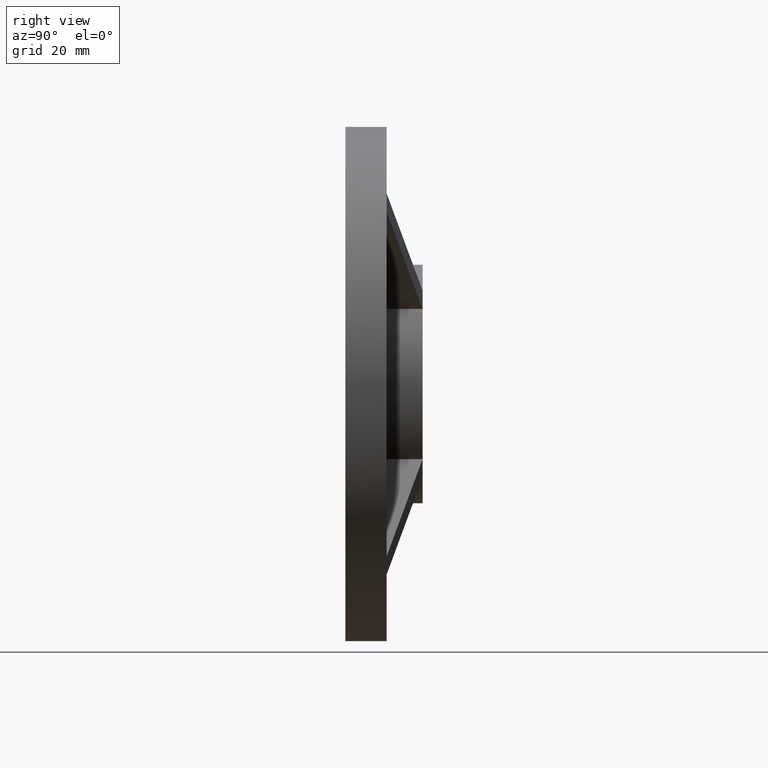
[diagram: clean part render]
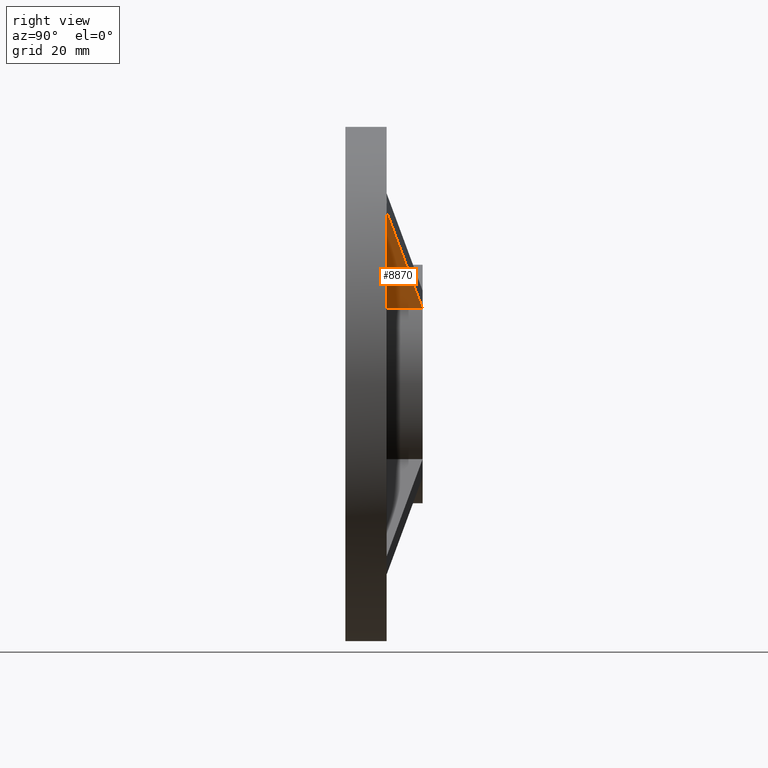
[diagram: same view with one face highlighted and labeled with its STEP entity id]
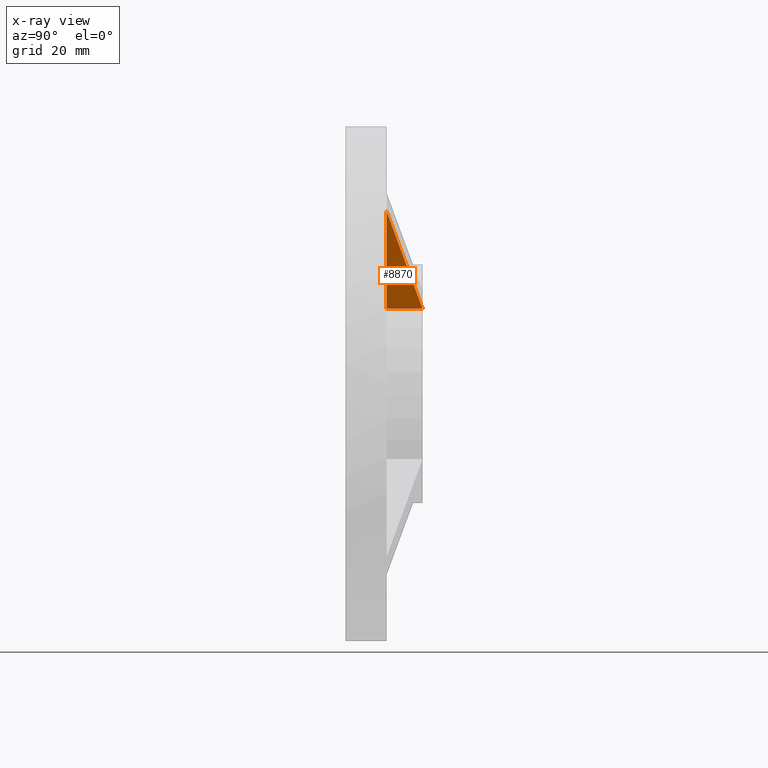
[diagram: x-ray of the same camera — body ghosted, the highlighted face saturated]
A machine part, right view. The second image highlights one B-rep face of the part: STEP entity #8870.
The next image is the same camera in x-ray: the body ghosted, the highlighted face saturated — about 0% of this face is hidden behind the body in this view.
In plain terms, the highlighted planar face has unit normal (-0.7071, 0, 0.7071).
Its self-contained STEP definition (entity closure, byte-faithful):
#411 = LINE ( 'NONE', #463, #10272 ) ;
#463 = CARTESIAN_POINT ( 'NONE',  ( 18.14824313652096421, 8.000000000000000000, 14.61270923058827442 ) ) ;
#579 = CARTESIAN_POINT ( 'NONE',  ( 12.64995997623135793, 17.03310506118021195, 9.114426070298652149 ) ) ;
#1821 = EDGE_CURVE ( 'NONE', #7334, #7254, #4297, .T. ) ;
#2003 = CARTESIAN_POINT ( 'NONE',  ( 18.14824313652096066, 15.00000000000000000, 14.61270923058827620 ) ) ;
#2114 = CARTESIAN_POINT ( 'NONE',  ( 37.07888418253015317, 8.000000000000000000, 33.54335027659752200 ) ) ;
#2121 = VECTOR ( 'NONE', #9463, 1000.000000000000000 ) ;
#2254 = ORIENTED_EDGE ( 'NONE', *, *, #1821, .F. ) ;
#3040 = CARTESIAN_POINT ( 'NONE',  ( 18.14824313652096421, 46.77196931168302996, 14.61270923058827265 ) ) ;
#3432 = AXIS2_PLACEMENT_3D ( 'NONE', #4666, #5584, #10245 ) ;
#4293 = EDGE_CURVE ( 'NONE', #7334, #7548, #10130, .T. ) ;
#4297 = LINE ( 'NONE', #3040, #2121 ) ;
#4666 = CARTESIAN_POINT ( 'NONE',  ( 18.14824313652096421, 46.77196931168302996, 14.61270923058827442 ) ) ;
#4989 = DIRECTION ( 'NONE',  ( -0.7071067811865464625, -0.000000000000000000, -0.7071067811865486830 ) ) ;
#5142 = CARTESIAN_POINT ( 'NONE',  ( 18.14824313652096421, 8.000000000000000000, 14.61270923058827265 ) ) ;
#5584 = DIRECTION ( 'NONE',  ( -0.7071067811865486830, 0.000000000000000000, 0.7071067811865464625 ) ) ;
#6209 = ORIENTED_EDGE ( 'NONE', *, *, #4293, .T. ) ;
#6761 = ORIENTED_EDGE ( 'NONE', *, *, #11830, .T. ) ;
#7254 = VERTEX_POINT ( 'NONE', #5142 ) ;
#7334 = VERTEX_POINT ( 'NONE', #2003 ) ;
#7548 = VERTEX_POINT ( 'NONE', #2114 ) ;
#8421 = VECTOR ( 'NONE', #9912, 1000.000000000000000 ) ;
#8870 = ADVANCED_FACE ( 'NONE', ( #10727 ), #10017, .F. ) ;
#9463 = DIRECTION ( 'NONE',  ( -0.000000000000000000, -1.000000000000000000, -0.000000000000000000 ) ) ;
#9912 = DIRECTION ( 'NONE',  ( 0.6841087168591863943, -0.2529634895287306007, 0.6841087168591885037 ) ) ;
#9948 = EDGE_LOOP ( 'NONE', ( #2254, #6209, #6761 ) ) ;
#10017 = PLANE ( 'NONE',  #3432 ) ;
#10130 = LINE ( 'NONE', #579, #8421 ) ;
#10245 = DIRECTION ( 'NONE',  ( 0.7071067811865464625, 0.000000000000000000, 0.7071067811865486830 ) ) ;
#10272 = VECTOR ( 'NONE', #4989, 999.9999999999998863 ) ;
#10727 = FACE_OUTER_BOUND ( 'NONE', #9948, .T. ) ;
#11830 = EDGE_CURVE ( 'NONE', #7548, #7254, #411, .T. ) ;